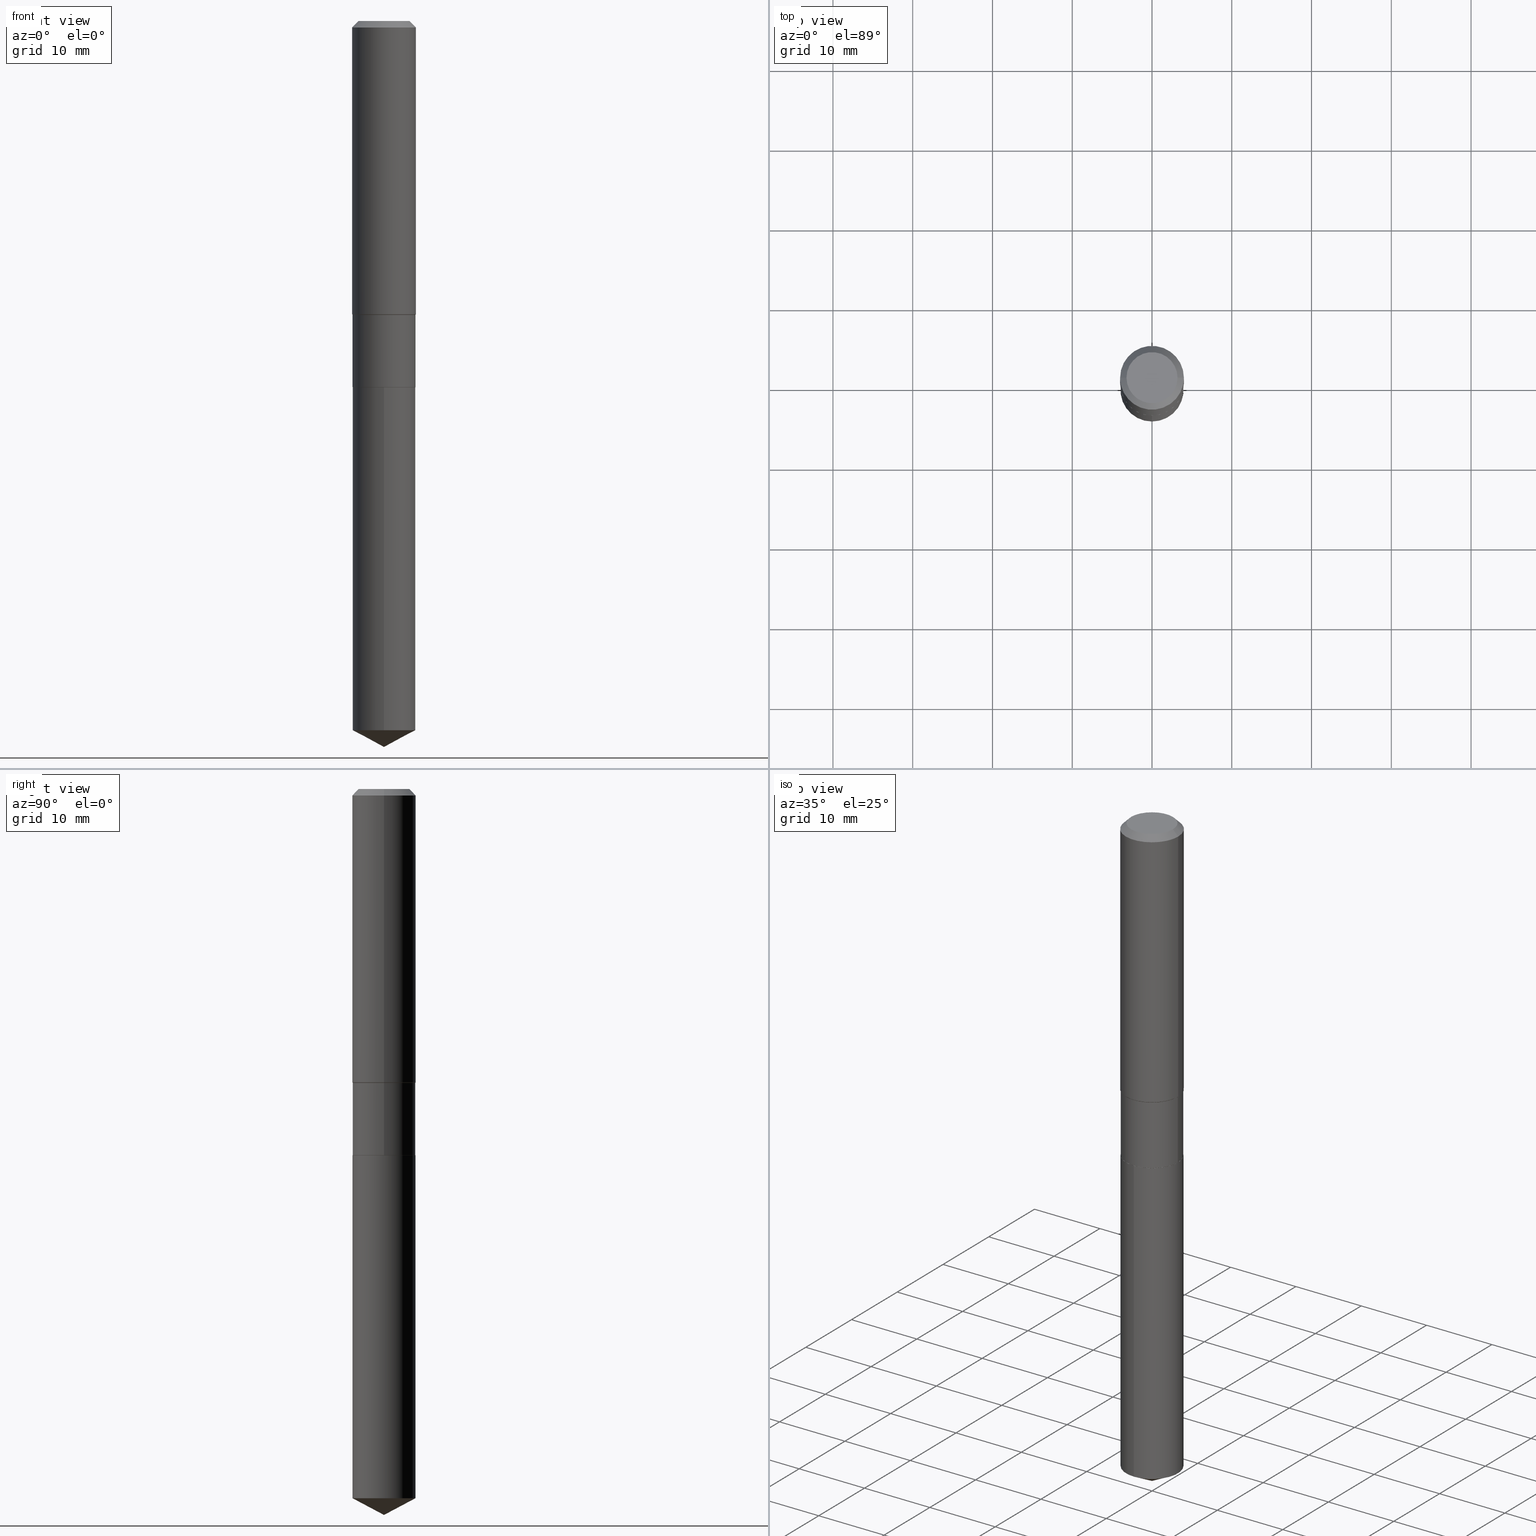
[diagram: canonical four-view strip — front | top / right | iso, engineering-drawing reading convention]
A machine part, canonical four-view strip (front | top / right | iso — engineering-drawing reading convention). The complete STEP part file that produces these views, byte-faithful:
ISO-10303-21;
HEADER;
FILE_DESCRIPTION (( 'STEP AP203' ),
    '1' );
FILE_NAME ('64849.STEP',
    '2024-04-24T19:13:58',
    ( '' ),
    ( '' ),
    'SwSTEP 2.0',
    'SolidWorks 2023',
    '' );
FILE_SCHEMA (( 'CONFIG_CONTROL_DESIGN' ));
ENDSEC;

DATA;
#1 = CARTESIAN_POINT ( 'NONE',  ( -0.1554999999999999438, 1.104893954106955390E-15, -7.648944065346376022E-30 ) ) ;
#2 = DIRECTION ( 'NONE',  ( -2.445468806185136597E-29, 3.491481338843145583E-15, 1.000000000000000000 ) ) ;
#3 = EDGE_CURVE ( 'NONE', #74, #77, #224, .T. ) ;
#4 = DIRECTION ( 'NONE',  ( -2.445468806185136877E-29, 3.491481338843145188E-15, 1.000000000000000000 ) ) ;
#5 = ORIENTED_EDGE ( 'NONE', *, *, #408, .F. ) ;
#6 = CARTESIAN_POINT ( 'NONE',  ( 4.419206679657160853E-29, -6.309455927423449056E-15, -1.807100000000000151 ) ) ;
#7 = ORIENTED_EDGE ( 'NONE', *, *, #162, .F. ) ;
#8 = DIRECTION ( 'NONE',  ( -2.445468806185136597E-29, 3.491481338843145583E-15, 1.000000000000000000 ) ) ;
#9 = ORIENTED_EDGE ( 'NONE', *, *, #357, .F. ) ;
#10 = AXIS2_PLACEMENT_3D ( 'NONE', #111, #368, #332 ) ;
#11 = CIRCLE ( 'NONE', #487, 0.1554999999999999993 ) ;
#12 = AXIS2_PLACEMENT_3D ( 'NONE', #316, #401, #100 ) ;
#13 = DIRECTION ( 'NONE',  ( -2.445468806185136597E-29, 3.491481338843145583E-15, 1.000000000000000000 ) ) ;
#14 = PERSON_AND_ORGANIZATION_ROLE ( 'classification_officer' ) ;
#15 = ORIENTED_EDGE ( 'NONE', *, *, #193, .F. ) ;
#16 = MANIFOLD_SOLID_BREP ( 'Body-Move/Copy2[1]', #434 ) ;
#17 = CARTESIAN_POINT ( 'NONE',  ( -0.1549999999999999989, -5.208114686995293579E-15, -1.807100000000000151 ) ) ;
#18 = DIRECTION ( 'NONE',  ( 1.000000000000000000, -6.982962677686267499E-15, 4.876176775795936353E-29 ) ) ;
#19 = CARTESIAN_POINT ( 'NONE',  ( -8.751634373926464530E-28, 1.249517879329679962E-13, 35.78737874015747877 ) ) ;
#20 = EDGE_CURVE ( 'NONE', #386, #422, #321, .T. ) ;
#21 = AXIS2_PLACEMENT_3D ( 'NONE', #374, #76, #421 ) ;
#22 = VECTOR ( 'NONE', #93, 39.37007874015748143 ) ;
#23 = DIRECTION ( 'NONE',  ( -6.982962677686265133E-15, -1.000000000000000000, 3.513630860018345064E-15 ) ) ;
#24 = DIRECTION ( 'NONE',  ( 1.000000000000000000, -6.982962677686269077E-15, 0.000000000000000000 ) ) ;
#25 = ADVANCED_FACE ( 'NONE', ( #244 ), #361, .F. ) ;
#26 = DATE_TIME_ROLE ( 'creation_date' ) ;
#27 = CARTESIAN_POINT ( 'NONE',  ( 3.544462487684736704E-29, -5.060553052519254127E-15, -1.449399999999999800 ) ) ;
#28 = CIRCLE ( 'NONE', #403, 0.1554999999999999438 ) ;
#29 = PERSON_AND_ORGANIZATION ( #60, #98 ) ;
#30 = CARTESIAN_POINT ( 'NONE',  ( 0.1575000000000000011, -1.190510096822576026E-15, -0.03150000000000019451 ) ) ;
#31 = VECTOR ( 'NONE', #218, 39.37007874015748143 ) ;
#32 = CARTESIAN_POINT ( 'NONE',  ( 4.419206679657160853E-29, -6.309455927423449056E-15, -1.807100000000000151 ) ) ;
#33 = DIRECTION ( 'NONE',  ( 2.445453521362926487E-29, -3.491503227578508075E-15, -1.000000000000000000 ) ) ;
#34 = FACE_OUTER_BOUND ( 'NONE', #89, .T. ) ;
#35 = DIRECTION ( 'NONE',  ( -2.445468806185136597E-29, 3.491481338843145583E-15, 1.000000000000000000 ) ) ;
#36 = LINE ( 'NONE', #41, #39 ) ;
#37 = CC_DESIGN_DATE_AND_TIME_ASSIGNMENT ( #457, #385, ( #160 ) ) ;
#38 = CYLINDRICAL_SURFACE ( 'NONE', #21, 0.1554999999999999993 ) ;
#39 = VECTOR ( 'NONE', #461, 39.37007874015748143 ) ;
#40 = ORIENTED_EDGE ( 'NONE', *, *, #144, .F. ) ;
#41 = CARTESIAN_POINT ( 'NONE',  ( 0.1549999999999999989, -7.391815142464819923E-15, -1.807100000000000151 ) ) ;
#42 = ORIENTED_EDGE ( 'NONE', *, *, #286, .T. ) ;
#43 = EDGE_CURVE ( 'NONE', #463, #55, #369, .T. ) ;
#44 = FACE_OUTER_BOUND ( 'NONE', #415, .T. ) ;
#45 = ORIENTED_EDGE ( 'NONE', *, *, #186, .T. ) ;
#46 = DIRECTION ( 'NONE',  ( -2.445468806185136597E-29, 3.491481338843145583E-15, 1.000000000000000000 ) ) ;
#47 = ORIENTED_EDGE ( 'NONE', *, *, #228, .F. ) ;
#48 = CONICAL_SURFACE ( 'NONE', #139, 0.1549999999999999989, 0.7853981633975507526 ) ;
#49 = AXIS2_PLACEMENT_3D ( 'NONE', #269, #235, #382 ) ;
#50 = DIRECTION ( 'NONE',  ( -2.445468806185136597E-29, 3.491481338843145583E-15, 1.000000000000000000 ) ) ;
#51 = ORIENTED_EDGE ( 'NONE', *, *, #118, .F. ) ;
#52 = APPROVAL_ROLE ( '' ) ;
#53 = DIRECTION ( 'NONE',  ( -1.000000000000000000, 6.982962677686265922E-15, -4.876176775795935793E-29 ) ) ;
#54 = PERSON_AND_ORGANIZATION_ROLE ( 'creator' ) ;
#55 = VERTEX_POINT ( 'NONE', #247 ) ;
#56 = CONICAL_SURFACE ( 'NONE', #459, 0.1554999999999999438, 0.7853981633974653764 ) ;
#57 =( LENGTH_UNIT ( ) NAMED_UNIT ( * ) SI_UNIT ( $, .METRE. ) );
#58 = ORIENTED_EDGE ( 'NONE', *, *, #328, .T. ) ;
#59 = EDGE_CURVE ( 'NONE', #133, #376, #242, .T. ) ;
#60 = PERSON ( 'UNSPECIFIED', 'UNSPECIFIED', 'UNSPECIFIED', ('UNSPECIFIED'), ('UNSPECIFIED'), ('UNSPECIFIED') ) ;
#61 = FACE_OUTER_BOUND ( 'NONE', #129, .T. ) ;
#62 = APPROVAL ( #353, 'UNSPECIFIED' ) ;
#63 = COORDINATED_UNIVERSAL_TIME_OFFSET ( 5, 0, .BEHIND. ) ;
#64 = ORIENTED_EDGE ( 'NONE', *, *, #162, .T. ) ;
#65 = VECTOR ( 'NONE', #4, 39.37007874015748143 ) ;
#66 = DIRECTION ( 'NONE',  ( -2.445453521362927048E-29, 3.491503227578508075E-15, 1.000000000000000000 ) ) ;
#67 = CARTESIAN_POINT ( 'NONE',  ( -8.751634373926464530E-28, 1.249517879329679962E-13, 35.78737874015747877 ) ) ;
#68 = DIRECTION ( 'NONE',  ( -2.445468806185136877E-29, 3.491481338843145188E-15, 1.000000000000000000 ) ) ;
#69 = LOCAL_TIME ( 15, 13, 58.00000000000000000, #204 ) ;
#70 = CARTESIAN_POINT ( 'NONE',  ( -0.1260000000000000009, 9.348441284752484904E-16, 3.860086710906114178E-18 ) ) ;
#71 = CONICAL_SURFACE ( 'NONE', #221, 74.04434902938317009, 1.082104136236484493 ) ;
#72 = ADVANCED_FACE ( 'NONE', ( #61 ), #48, .T. ) ;
#73 = DIRECTION ( 'NONE',  ( 6.982962677686265922E-15, 1.000000000000000000, -3.491503227578508075E-15 ) ) ;
#74 = VERTEX_POINT ( 'NONE', #214 ) ;
#75 = APPLICATION_CONTEXT ( 'configuration controlled 3d designs of mechanical parts and assemblies' ) ;
#76 = DIRECTION ( 'NONE',  ( -2.445453521362927048E-29, 3.491503227578508075E-15, 1.000000000000000000 ) ) ;
#77 = VERTEX_POINT ( 'NONE', #216 ) ;
#78 = ADVANCED_FACE ( 'NONE', ( #323 ), #312, .T. ) ;
#79 = DIRECTION ( 'NONE',  ( 2.445468806185136597E-29, -3.491481338843145583E-15, -1.000000000000000000 ) ) ;
#80 = AXIS2_PLACEMENT_3D ( 'NONE', #153, #300, #450 ) ;
#81 = ORIENTED_EDGE ( 'NONE', *, *, #20, .F. ) ;
#82 = CARTESIAN_POINT ( 'NONE',  ( 4.419206679657160853E-29, -6.309455927423449056E-15, -1.807100000000000151 ) ) ;
#83 = CC_DESIGN_PERSON_AND_ORGANIZATION_ASSIGNMENT ( #181, #101, ( #267 ) ) ;
#84 = SHAPE_DEFINITION_REPRESENTATION ( #306, #258 ) ;
#85 = ORIENTED_EDGE ( 'NONE', *, *, #350, .F. ) ;
#86 = LINE ( 'NONE', #338, #277 ) ;
#87 = ORIENTED_EDGE ( 'NONE', *, *, #480, .T. ) ;
#88 = FACE_OUTER_BOUND ( 'NONE', #175, .T. ) ;
#89 = EDGE_LOOP ( 'NONE', ( #397, #399, #425, #115 ) ) ;
#90 = AXIS2_PLACEMENT_3D ( 'NONE', #454, #79, #195 ) ;
#91 = EDGE_CURVE ( 'NONE', #376, #285, #102, .T. ) ;
#92 = MECHANICAL_CONTEXT ( 'NONE', #468, 'mechanical' ) ;
#93 = DIRECTION ( 'NONE',  ( -0.7071067811866199593, 7.493145998870616062E-15, 0.7071067811864750752 ) ) ;
#94 = PERSON_AND_ORGANIZATION_ROLE ( 'design_owner' ) ;
#95 = CARTESIAN_POINT ( 'NONE',  ( 4.419206679657160853E-29, -6.309455927423449056E-15, -1.807100000000000151 ) ) ;
#96 = LINE ( 'NONE', #249, #299 ) ;
#97 = ORIENTED_EDGE ( 'NONE', *, *, #149, .F. ) ;
#98 = ORGANIZATION ( 'UNSPECIFIED', 'UNSPECIFIED', '' ) ;
#99 = APPROVAL_DATE_TIME ( #432, #62 ) ;
#100 = DIRECTION ( 'NONE',  ( 1.000000000000000000, -6.982962677686265922E-15, 0.000000000000000000 ) ) ;
#101 = PERSON_AND_ORGANIZATION_ROLE ( 'design_supplier' ) ;
#102 = LINE ( 'NONE', #253, #489 ) ;
#103 = FACE_OUTER_BOUND ( 'NONE', #124, .T. ) ;
#104 = AXIS2_PLACEMENT_3D ( 'NONE', #185, #440, #329 ) ;
#105 = DIRECTION ( 'NONE',  ( -2.445468806185136597E-29, 3.491481338843145583E-15, 1.000000000000000000 ) ) ;
#106 = CARTESIAN_POINT ( 'NONE',  ( 8.761326330986958013E-29, -1.250900861344551918E-14, -3.582699999999999996 ) ) ;
#107 = CARTESIAN_POINT ( 'NONE',  ( 0.1549999999999999989, -7.391815142464819923E-15, -1.807100000000000151 ) ) ;
#108 = ADVANCED_FACE ( 'NONE', ( #427 ), #71, .T. ) ;
#109 = AXIS2_PLACEMENT_3D ( 'NONE', #257, #105, #152 ) ;
#110 = VECTOR ( 'NONE', #388, 39.37007874015748143 ) ;
#111 = CARTESIAN_POINT ( 'NONE',  ( 7.703226739483226971E-31, -1.099816621735597538E-16, -0.03150000000000019451 ) ) ;
#112 = VECTOR ( 'NONE', #261, 39.37007874015748143 ) ;
#113 = FACE_OUTER_BOUND ( 'NONE', #238, .T. ) ;
#114 = COORDINATED_UNIVERSAL_TIME_OFFSET ( 5, 0, .BEHIND. ) ;
#115 = ORIENTED_EDGE ( 'NONE', *, *, #371, .F. ) ;
#116 = DIRECTION ( 'NONE',  ( 1.000000000000000000, -6.982962677686265922E-15, 4.876281427513067258E-29 ) ) ;
#117 = ORIENTED_EDGE ( 'NONE', *, *, #43, .T. ) ;
#118 = EDGE_CURVE ( 'NONE', #383, #433, #378, .T. ) ;
#119 = CARTESIAN_POINT ( 'NONE',  ( 4.417983945254068051E-29, -6.307710186754027552E-15, -1.806600000000000428 ) ) ;
#120 = APPROVAL_STATUS ( 'not_yet_approved' ) ;
#121 = ORIENTED_EDGE ( 'NONE', *, *, #251, .F. ) ;
#122 = AXIS2_PLACEMENT_3D ( 'NONE', #283, #356, #53 ) ;
#123 = DIRECTION ( 'NONE',  ( -6.982962677686265133E-15, -1.000000000000000000, 3.513630860018345064E-15 ) ) ;
#124 = EDGE_LOOP ( 'NONE', ( #420, #381, #394, #64 ) ) ;
#125 = DIRECTION ( 'NONE',  ( -2.445468806185136597E-29, 3.491481338843145583E-15, 1.000000000000000000 ) ) ;
#126 = ORIENTED_EDGE ( 'NONE', *, *, #402, .T. ) ;
#127 = EDGE_CURVE ( 'NONE', #276, #386, #460, .T. ) ;
#128 = PERSON_AND_ORGANIZATION ( #60, #98 ) ;
#129 = EDGE_LOOP ( 'NONE', ( #197, #234, #121, #393 ) ) ;
#130 = DIRECTION ( 'NONE',  ( -6.165590087286827352E-15, -0.8829475928589254341, 0.4694715627858938034 ) ) ;
#131 = DIRECTION ( 'NONE',  ( -2.445453521362927048E-29, 3.491503227578508075E-15, 1.000000000000000000 ) ) ;
#132 = CYLINDRICAL_SURFACE ( 'NONE', #355, 0.1575000000000000844 ) ;
#133 = VERTEX_POINT ( 'NONE', #327 ) ;
#134 = PRODUCT_DEFINITION ( 'UNKNOWN', '', #267, #446 ) ;
#135 = LINE ( 'NONE', #396, #370 ) ;
#136 = DIRECTION ( 'NONE',  ( -2.445468806185136597E-29, 3.491481338843145583E-15, 1.000000000000000000 ) ) ;
#137 = AXIS2_PLACEMENT_3D ( 'NONE', #476, #209, #23 ) ;
#138 = LOCAL_TIME ( 15, 13, 58.00000000000000000, #315 ) ;
#139 = AXIS2_PLACEMENT_3D ( 'NONE', #95, #136, #474 ) ;
#140 = DIRECTION ( 'NONE',  ( -2.445468806185136597E-29, 3.491481338843145583E-15, 1.000000000000000000 ) ) ;
#141 = ORIENTED_EDGE ( 'NONE', *, *, #408, .T. ) ;
#142 = PERSON_AND_ORGANIZATION ( #60, #98 ) ;
#143 = DIRECTION ( 'NONE',  ( 1.000000000000000000, -6.982962677686266711E-15, 0.000000000000000000 ) ) ;
#144 = EDGE_CURVE ( 'NONE', #433, #383, #206, .T. ) ;
#145 = DIRECTION ( 'NONE',  ( -6.982962677686267499E-15, -1.000000000000000000, 3.541896320645578618E-15 ) ) ;
#146 = CONICAL_SURFACE ( 'NONE', #49, 0.1549999999999999989, 0.7853981633975507526 ) ;
#147 = AXIS2_PLACEMENT_3D ( 'NONE', #443, #447, #364 ) ;
#148 = CARTESIAN_POINT ( 'NONE',  ( -9.439721640706201686E-47, 1.347742071746726764E-32, 3.860086710912459732E-18 ) ) ;
#149 = EDGE_CURVE ( 'NONE', #481, #161, #482, .T. ) ;
#150 = PLANE ( 'NONE',  #147 ) ;
#151 = CC_DESIGN_PERSON_AND_ORGANIZATION_ASSIGNMENT ( #176, #54, ( #134 ) ) ;
#152 = DIRECTION ( 'NONE',  ( 1.000000000000000000, -6.982962677686267499E-15, 0.000000000000000000 ) ) ;
#153 = CARTESIAN_POINT ( 'NONE',  ( 4.419206679657160853E-29, -6.309455927423449056E-15, -1.807100000000000151 ) ) ;
#154 = ORIENTED_EDGE ( 'NONE', *, *, #149, .T. ) ;
#155 = CARTESIAN_POINT ( 'NONE',  ( -0.1575000000000000844, 1.119104808822158392E-15, -7.747322767151481189E-30 ) ) ;
#156 = ORIENTED_EDGE ( 'NONE', *, *, #423, .F. ) ;
#157 = DIRECTION ( 'NONE',  ( 1.000000000000000000, -6.982962677686266711E-15, 0.000000000000000000 ) ) ;
#158 = ORIENTED_EDGE ( 'NONE', *, *, #127, .F. ) ;
#159 = CYLINDRICAL_SURFACE ( 'NONE', #307, 0.1554999999999999438 ) ;
#160 = SECURITY_CLASSIFICATION ( '', '', #325 ) ;
#161 = VERTEX_POINT ( 'NONE', #70 ) ;
#162 = EDGE_CURVE ( 'NONE', #55, #463, #201, .T. ) ;
#163 = CARTESIAN_POINT ( 'NONE',  ( 0.1554999999999999993, -7.393560883134242215E-15, -1.806600000000000428 ) ) ;
#164 = ORIENTED_EDGE ( 'NONE', *, *, #3, .T. ) ;
#165 = DIRECTION ( 'NONE',  ( 0.000000000000000000, 0.000000000000000000, 1.000000000000000000 ) ) ;
#166 = DIRECTION ( 'NONE',  ( -2.445453521362927048E-29, 3.491503227578508075E-15, 1.000000000000000000 ) ) ;
#167 = APPLICATION_PROTOCOL_DEFINITION ( 'international standard', 'config_control_design', 1994, #468 ) ;
#168 = CARTESIAN_POINT ( 'NONE',  ( 0.000000000000000000, 0.000000000000000000, 0.000000000000000000 ) ) ;
#169 = AXIS2_PLACEMENT_3D ( 'NONE', #464, #13, #116 ) ;
#170 = EDGE_CURVE ( 'NONE', #133, #309, #296, .T. ) ;
#171 = AXIS2_PLACEMENT_3D ( 'NONE', #406, #485, #220 ) ;
#172 = DATE_AND_TIME ( #210, #232 ) ;
#173 = ORIENTED_EDGE ( 'NONE', *, *, #313, .T. ) ;
#174 = APPLICATION_PROTOCOL_DEFINITION ( 'international standard', 'config_control_design', 1994, #75 ) ;
#175 = EDGE_LOOP ( 'NONE', ( #156, #343, #141, #7 ) ) ;
#176 = PERSON_AND_ORGANIZATION ( #60, #98 ) ;
#177 = DIRECTION ( 'NONE',  ( -2.445468806185136597E-29, 3.491481338843145583E-15, 1.000000000000000000 ) ) ;
#178 = CC_DESIGN_SECURITY_CLASSIFICATION ( #160, ( #267 ) ) ;
#179 = AXIS2_PLACEMENT_3D ( 'NONE', #404, #66, #123 ) ;
#180 = AXIS2_PLACEMENT_3D ( 'NONE', #67, #445, #145 ) ;
#181 = PERSON_AND_ORGANIZATION ( #60, #98 ) ;
#182 = ADVANCED_FACE ( 'NONE', ( #326 ), #389, .T. ) ;
#183 = DIRECTION ( 'NONE',  ( -2.445453521362927048E-29, 3.491503227578508075E-15, 1.000000000000000000 ) ) ;
#184 = DIRECTION ( 'NONE',  ( 1.000000000000000000, -6.982962677686265922E-15, 4.876281427513067258E-29 ) ) ;
#185 = CARTESIAN_POINT ( 'NONE',  ( 3.539571550072366058E-29, -5.053570089841568113E-15, -1.447399999999999798 ) ) ;
#186 = EDGE_CURVE ( 'NONE', #481, #463, #219, .T. ) ;
#187 = CIRCLE ( 'NONE', #377, 0.1554999999999999993 ) ;
#188 = DIRECTION ( 'NONE',  ( -6.982962677686265133E-15, -1.000000000000000000, 3.513630860018345064E-15 ) ) ;
#189 = CARTESIAN_POINT ( 'NONE',  ( 4.417983945254068051E-29, -6.307710186754027552E-15, -1.806600000000000428 ) ) ;
#190 = CARTESIAN_POINT ( 'NONE',  ( 1.104893954107041376E-15, 0.1554999999999936711, -1.807100000000000817 ) ) ;
#191 = PERSON_AND_ORGANIZATION ( #60, #98 ) ;
#192 = FACE_OUTER_BOUND ( 'NONE', #469, .T. ) ;
#193 = EDGE_CURVE ( 'NONE', #74, #433, #367, .T. ) ;
#194 = ORIENTED_EDGE ( 'NONE', *, *, #59, .F. ) ;
#195 = DIRECTION ( 'NONE',  ( -1.000000000000000000, 6.982962677686265922E-15, 0.000000000000000000 ) ) ;
#196 = APPROVAL ( #362, 'UNSPECIFIED' ) ;
#197 = ORIENTED_EDGE ( 'NONE', *, *, #127, .T. ) ;
#198 = DIRECTION ( 'NONE',  ( -2.445453521362927048E-29, 3.491503227578508075E-15, 1.000000000000000000 ) ) ;
#199 = ORIENTED_EDGE ( 'NONE', *, *, #91, .F. ) ;
#200 = ADVANCED_FACE ( 'NONE', ( #103 ), #449, .T. ) ;
#201 = CIRCLE ( 'NONE', #171, 0.1575000000000000011 ) ;
#202 = CARTESIAN_POINT ( 'NONE',  ( 3.544462487684736704E-29, -5.060553052519254127E-15, -1.449399999999999800 ) ) ;
#203 = VECTOR ( 'NONE', #379, 39.37007874015748143 ) ;
#204 = COORDINATED_UNIVERSAL_TIME_OFFSET ( 5, 0, .BEHIND. ) ;
#205 = ORIENTED_EDGE ( 'NONE', *, *, #118, .T. ) ;
#206 = CIRCLE ( 'NONE', #104, 0.1575000000000001676 ) ;
#207 = LINE ( 'NONE', #284, #110 ) ;
#208 = EDGE_LOOP ( 'NONE', ( #236, #305, #51, #455 ) ) ;
#209 = DIRECTION ( 'NONE',  ( -2.445453521362927048E-29, 3.491503227578508075E-15, 1.000000000000000000 ) ) ;
#210 = CALENDAR_DATE ( 2024, 24, 4 ) ;
#211 = EDGE_LOOP ( 'NONE', ( #173, #458 ) ) ;
#212 = CONICAL_SURFACE ( 'NONE', #314, 0.1554999999999999438, 0.7853981633974653764 ) ;
#213 = ORIENTED_EDGE ( 'NONE', *, *, #43, .F. ) ;
#214 = CARTESIAN_POINT ( 'NONE',  ( -0.1554999999999999438, -4.579237665529685647E-15, -1.449399999999999800 ) ) ;
#215 = APPROVAL_ROLE ( '' ) ;
#216 = CARTESIAN_POINT ( 'NONE',  ( 0.1554999999999999438, -6.146403748899468790E-15, -1.449399999999999800 ) ) ;
#217 = LOCAL_TIME ( 15, 13, 58.00000000000000000, #63 ) ;
#218 = DIRECTION ( 'NONE',  ( -0.7071067811865595631, 7.493145998870398336E-15, 0.7071067811865354713 ) ) ;
#219 = LINE ( 'NONE', #30, #112 ) ;
#220 = DIRECTION ( 'NONE',  ( 1.000000000000000000, -6.982962677686265922E-15, 0.000000000000000000 ) ) ;
#221 = AXIS2_PLACEMENT_3D ( 'NONE', #19, #131, #246 ) ;
#222 = AXIS2_PLACEMENT_3D ( 'NONE', #392, #165, #278 ) ;
#223 = DIMENSIONAL_EXPONENTS ( 1.000000000000000000, 0.000000000000000000, 0.000000000000000000, 0.000000000000000000, 0.000000000000000000, 0.000000000000000000, 0.000000000000000000 ) ;
#224 = CIRCLE ( 'NONE', #331, 0.1554999999999999438 ) ;
#225 = FACE_OUTER_BOUND ( 'NONE', #211, .T. ) ;
#226 = CARTESIAN_POINT ( 'NONE',  ( -0.1549999999999999989, -5.205465459821182378E-15, -1.807100000000000151 ) ) ;
#227 = ORIENTED_EDGE ( 'NONE', *, *, #320, .F. ) ;
#228 = EDGE_CURVE ( 'NONE', #422, #74, #366, .T. ) ;
#229 = LINE ( 'NONE', #155, #255 ) ;
#230 = APPROVAL_ROLE ( '' ) ;
#231 = EDGE_LOOP ( 'NONE', ( #47, #266, #290, #390 ) ) ;
#232 = LOCAL_TIME ( 15, 13, 58.00000000000000000, #398 ) ;
#233 = LINE ( 'NONE', #263, #65 ) ;
#234 = ORIENTED_EDGE ( 'NONE', *, *, #20, .T. ) ;
#235 = DIRECTION ( 'NONE',  ( -2.445468806185136597E-29, 3.491481338843145583E-15, 1.000000000000000000 ) ) ;
#236 = ORIENTED_EDGE ( 'NONE', *, *, #320, .T. ) ;
#237 = CARTESIAN_POINT ( 'NONE',  ( -0.1554999999999999993, -4.579237665529685647E-15, -1.806600000000000428 ) ) ;
#238 = EDGE_LOOP ( 'NONE', ( #274, #319, #227, #85 ) ) ;
#239 = CONICAL_SURFACE ( 'NONE', #90, 0.1575000000000000011, 0.7853981633974450594 ) ;
#240 = CARTESIAN_POINT ( 'NONE',  ( 0.000000000000000000, 0.000000000000000000, 0.000000000000000000 ) ) ;
#241 = EDGE_LOOP ( 'NONE', ( #58, #154 ) ) ;
#242 = CIRCLE ( 'NONE', #137, 0.1554999999999999993 ) ;
#243 =( NAMED_UNIT ( * ) SI_UNIT ( $, .STERADIAN. ) SOLID_ANGLE_UNIT ( ) );
#244 = FACE_OUTER_BOUND ( 'NONE', #241, .T. ) ;
#245 = ADVANCED_FACE ( 'NONE', ( #34 ), #484, .T. ) ;
#246 = DIRECTION ( 'NONE',  ( -6.982962677686267499E-15, -1.000000000000000000, 3.541896320645578618E-15 ) ) ;
#247 = CARTESIAN_POINT ( 'NONE',  ( -0.1575000000000000011, -1.462671067185405196E-15, -0.03150000000000019451 ) ) ;
#248 = CIRCLE ( 'NONE', #80, 0.1549999999999999989 ) ;
#249 = CARTESIAN_POINT ( 'NONE',  ( 8.761326330986956891E-29, -1.250900861344551918E-14, -3.582699999999999996 ) ) ;
#250 = ORIENTED_EDGE ( 'NONE', *, *, #313, .F. ) ;
#251 = EDGE_CURVE ( 'NONE', #341, #422, #410, .T. ) ;
#252 = DATE_AND_TIME ( #435, #217 ) ;
#253 = CARTESIAN_POINT ( 'NONE',  ( -1.085850696380170092E-15, -0.1555000000000062998, -1.807099999999999707 ) ) ;
#254 = CARTESIAN_POINT ( 'NONE',  ( -1.085850696380170092E-15, -0.1555000000000062998, -1.807099999999999707 ) ) ;
#255 = VECTOR ( 'NONE', #265, 39.37007874015748143 ) ;
#256 = DIRECTION ( 'NONE',  ( -2.445468806185136597E-29, 3.491481338843145583E-15, 1.000000000000000000 ) ) ;
#257 = CARTESIAN_POINT ( 'NONE',  ( 3.539571550072366058E-29, -5.053570089841568113E-15, -1.447399999999999798 ) ) ;
#258 = ADVANCED_BREP_SHAPE_REPRESENTATION ( '64849', ( #16, #336, #222 ), #431 ) ;
#259 = FACE_OUTER_BOUND ( 'NONE', #208, .T. ) ;
#260 = APPROVAL_PERSON_ORGANIZATION ( #318, #196, #215 ) ;
#261 = DIRECTION ( 'NONE',  ( 0.7071067811865452413, -7.319954787623248157E-15, -0.7071067811865497932 ) ) ;
#262 = ADVANCED_FACE ( 'NONE', ( #225 ), #488, .F. ) ;
#263 = CARTESIAN_POINT ( 'NONE',  ( 0.1575000000000000844, -1.099816621735587677E-15, 7.679978421878603638E-30 ) ) ;
#264 = ORIENTED_EDGE ( 'NONE', *, *, #480, .F. ) ;
#265 = DIRECTION ( 'NONE',  ( -2.445468806185136877E-29, 3.491481338843145188E-15, 1.000000000000000000 ) ) ;
#266 = ORIENTED_EDGE ( 'NONE', *, *, #357, .T. ) ;
#267 = PRODUCT_DEFINITION_FORMATION_WITH_SPECIFIED_SOURCE ( 'ANY', '', #279, .NOT_KNOWN. ) ;
#268 = ADVANCED_FACE ( 'NONE', ( #295 ), #150, .F. ) ;
#269 = CARTESIAN_POINT ( 'NONE',  ( 4.419206679657160853E-29, -6.309455927423449056E-15, -1.807100000000000151 ) ) ;
#270 = VECTOR ( 'NONE', #183, 39.37007874015748143 ) ;
#271 = VERTEX_POINT ( 'NONE', #106 ) ;
#272 = DIRECTION ( 'NONE',  ( -6.982962677686265133E-15, -1.000000000000000000, 3.513630860018345064E-15 ) ) ;
#273 = CC_DESIGN_PERSON_AND_ORGANIZATION_ASSIGNMENT ( #29, #483, ( #267 ) ) ;
#274 = ORIENTED_EDGE ( 'NONE', *, *, #251, .T. ) ;
#275 = LINE ( 'NONE', #335, #203 ) ;
#276 = VERTEX_POINT ( 'NONE', #107 ) ;
#277 = VECTOR ( 'NONE', #413, 39.37007874015748143 ) ;
#278 = DIRECTION ( 'NONE',  ( 1.000000000000000000, 0.000000000000000000, 0.000000000000000000 ) ) ;
#279 = PRODUCT ( '64849', '64849', '', ( #92 ) ) ;
#280 = ORIENTED_EDGE ( 'NONE', *, *, #402, .F. ) ;
#281 = ADVANCED_FACE ( 'NONE', ( #259 ), #56, .T. ) ;
#282 =( CONVERSION_BASED_UNIT ( 'INCH', #470 ) LENGTH_UNIT ( ) NAMED_UNIT ( #223 ) );
#283 = CARTESIAN_POINT ( 'NONE',  ( -4.719860820353100843E-47, 6.738710358733633822E-33, 1.930043355456229866E-18 ) ) ;
#284 = CARTESIAN_POINT ( 'NONE',  ( 0.1554999999999999438, -6.146403748899468790E-15, -1.449399999999999800 ) ) ;
#285 = VERTEX_POINT ( 'NONE', #254 ) ;
#286 = EDGE_CURVE ( 'NONE', #376, #133, #293, .T. ) ;
#287 = ORIENTED_EDGE ( 'NONE', *, *, #286, .F. ) ;
#288 = CC_DESIGN_APPROVAL ( #196, ( #267 ) ) ;
#289 = CARTESIAN_POINT ( 'NONE',  ( 0.1260000000000000009, -1.027466422270894443E-15, 3.860086710919128072E-18 ) ) ;
#290 = ORIENTED_EDGE ( 'NONE', *, *, #350, .T. ) ;
#291 = CARTESIAN_POINT ( 'NONE',  ( 4.419206679657160853E-29, -6.309455927423449056E-15, -1.807100000000000151 ) ) ;
#292 = DIRECTION ( 'NONE',  ( 1.000000000000000000, -6.982962677686263555E-15, 0.000000000000000000 ) ) ;
#293 = CIRCLE ( 'NONE', #179, 0.1554999999999999993 ) ;
#294 = AXIS2_PLACEMENT_3D ( 'NONE', #168, #354, #471 ) ;
#295 = FACE_OUTER_BOUND ( 'NONE', #359, .T. ) ;
#296 = LINE ( 'NONE', #407, #270 ) ;
#297 = DIRECTION ( 'NONE',  ( -2.445468806185136597E-29, 3.491481338843145583E-15, 1.000000000000000000 ) ) ;
#298 = ADVANCED_FACE ( 'NONE', ( #375 ), #146, .T. ) ;
#299 = VECTOR ( 'NONE', #130, 39.37007874015748854 ) ;
#300 = DIRECTION ( 'NONE',  ( -2.445468806185136597E-29, 3.491481338843145583E-15, 1.000000000000000000 ) ) ;
#301 = ORIENTED_EDGE ( 'NONE', *, *, #452, .T. ) ;
#302 = CARTESIAN_POINT ( 'NONE',  ( -0.1575000000000001676, -3.934465281019408143E-15, -1.447399999999999798 ) ) ;
#303 = EDGE_LOOP ( 'NONE', ( #205, #451, #213, #5 ) ) ;
#304 = FACE_OUTER_BOUND ( 'NONE', #418, .T. ) ;
#305 = ORIENTED_EDGE ( 'NONE', *, *, #193, .T. ) ;
#306 = PRODUCT_DEFINITION_SHAPE ( 'NONE', 'NONE',  #134 ) ;
#307 = AXIS2_PLACEMENT_3D ( 'NONE', #308, #125, #384 ) ;
#308 = CARTESIAN_POINT ( 'NONE',  ( 0.000000000000000000, 0.000000000000000000, 0.000000000000000000 ) ) ;
#309 = VERTEX_POINT ( 'NONE', #190 ) ;
#310 = DIRECTION ( 'NONE',  ( 1.000000000000000000, -6.982962677686269077E-15, 0.000000000000000000 ) ) ;
#311 = EDGE_LOOP ( 'NONE', ( #81, #126, #467, #9 ) ) ;
#312 = CYLINDRICAL_SURFACE ( 'NONE', #294, 0.1554999999999999438 ) ;
#313 = EDGE_CURVE ( 'NONE', #285, #309, #187, .T. ) ;
#314 = AXIS2_PLACEMENT_3D ( 'NONE', #419, #46, #310 ) ;
#315 = COORDINATED_UNIVERSAL_TIME_OFFSET ( 5, 0, .BEHIND. ) ;
#316 = CARTESIAN_POINT ( 'NONE',  ( 7.703226739483226971E-31, -1.099816621735597538E-16, -0.03150000000000019451 ) ) ;
#317 = CC_DESIGN_PERSON_AND_ORGANIZATION_ASSIGNMENT ( #360, #94, ( #279 ) ) ;
#318 = PERSON_AND_ORGANIZATION ( #60, #98 ) ;
#319 = ORIENTED_EDGE ( 'NONE', *, *, #228, .T. ) ;
#320 = EDGE_CURVE ( 'NONE', #77, #74, #28, .T. ) ;
#321 = LINE ( 'NONE', #17, #22 ) ;
#322 = CARTESIAN_POINT ( 'NONE',  ( 0.1575000000000000011, -1.209798283909146741E-15, -0.03150000000000019451 ) ) ;
#323 = FACE_OUTER_BOUND ( 'NONE', #231, .T. ) ;
#324 = CLOSED_SHELL ( 'NONE', ( #72, #437, #442, #281, #380, #78, #365, #472, #200, #25, #268, #298 ) ) ;
#325 = SECURITY_CLASSIFICATION_LEVEL ( 'unclassified' ) ;
#326 = FACE_OUTER_BOUND ( 'NONE', #429, .T. ) ;
#327 = CARTESIAN_POINT ( 'NONE',  ( 1.104893954107041376E-15, 0.1554999999999877869, -3.500019183376640530 ) ) ;
#328 = EDGE_CURVE ( 'NONE', #161, #481, #330, .T. ) ;
#329 = DIRECTION ( 'NONE',  ( 1.000000000000000000, -6.982962677686267499E-15, 0.000000000000000000 ) ) ;
#330 = CIRCLE ( 'NONE', #169, 0.1260000000000000009 ) ;
#331 = AXIS2_PLACEMENT_3D ( 'NONE', #27, #177, #24 ) ;
#332 = DIRECTION ( 'NONE',  ( -1.000000000000000000, 6.982962677686265922E-15, 0.000000000000000000 ) ) ;
#333 = ADVANCED_FACE ( 'NONE', ( #44 ), #38, .T. ) ;
#334 = CARTESIAN_POINT ( 'NONE',  ( -0.1554999999999999438, -3.955659098412298540E-15, -1.449399999999999800 ) ) ;
#335 = CARTESIAN_POINT ( 'NONE',  ( 0.1554999999999999438, -1.085850696380214268E-15, 7.582454886362678420E-30 ) ) ;
#336 = MANIFOLD_SOLID_BREP ( 'Body-Move/Copy2[2]', #324 ) ;
#337 = CC_DESIGN_APPROVAL ( #62, ( #134 ) ) ;
#338 = CARTESIAN_POINT ( 'NONE',  ( -0.1575000000000000011, 9.898349595620272334E-16, -0.03150000000000019451 ) ) ;
#339 = ORIENTED_EDGE ( 'NONE', *, *, #486, .F. ) ;
#340 = FACE_OUTER_BOUND ( 'NONE', #303, .T. ) ;
#341 = VERTEX_POINT ( 'NONE', #163 ) ;
#342 = DIRECTION ( 'NONE',  ( -6.982962677686265133E-15, -1.000000000000000000, 3.513630860018345064E-15 ) ) ;
#343 = ORIENTED_EDGE ( 'NONE', *, *, #144, .T. ) ;
#344 = AXIS2_PLACEMENT_3D ( 'NONE', #32, #412, #188 ) ;
#345 = APPROVAL_PERSON_ORGANIZATION ( #128, #62, #52 ) ;
#346 = DIRECTION ( 'NONE',  ( 1.000000000000000000, -6.982962677686269077E-15, 0.000000000000000000 ) ) ;
#347 = AXIS2_PLACEMENT_3D ( 'NONE', #148, #256, #184 ) ;
#348 = CALENDAR_DATE ( 2024, 24, 4 ) ;
#349 = EDGE_LOOP ( 'NONE', ( #339, #87, #287 ) ) ;
#350 = EDGE_CURVE ( 'NONE', #341, #77, #275, .T. ) ;
#351 = DIRECTION ( 'NONE',  ( 6.273719981627758188E-15, 0.8829475928589286537, 0.4694715627858875306 ) ) ;
#352 = ORIENTED_EDGE ( 'NONE', *, *, #170, .T. ) ;
#353 = APPROVAL_STATUS ( 'not_yet_approved' ) ;
#354 = DIRECTION ( 'NONE',  ( -2.445468806185136597E-29, 3.491481338843145583E-15, 1.000000000000000000 ) ) ;
#355 = AXIS2_PLACEMENT_3D ( 'NONE', #479, #140, #18 ) ;
#356 = DIRECTION ( 'NONE',  ( 2.438088387897960049E-29, -3.491481338843145188E-15, -1.000000000000000000 ) ) ;
#357 = EDGE_CURVE ( 'NONE', #422, #341, #395, .T. ) ;
#358 =( NAMED_UNIT ( * ) PLANE_ANGLE_UNIT ( ) SI_UNIT ( $, .RADIAN. ) );
#359 = EDGE_LOOP ( 'NONE', ( #158, #280 ) ) ;
#360 = PERSON_AND_ORGANIZATION ( #60, #98 ) ;
#361 = PLANE ( 'NONE',  #122 ) ;
#362 = APPROVAL_STATUS ( 'not_yet_approved' ) ;
#363 = AXIS2_PLACEMENT_3D ( 'NONE', #240, #50, #473 ) ;
#364 = DIRECTION ( 'NONE',  ( 1.000000000000000000, -6.982962677686265922E-15, 4.876176775795935793E-29 ) ) ;
#365 = ADVANCED_FACE ( 'NONE', ( #192 ), #212, .T. ) ;
#366 = LINE ( 'NONE', #1, #430 ) ;
#367 = LINE ( 'NONE', #334, #31 ) ;
#368 = DIRECTION ( 'NONE',  ( 2.445468806185136597E-29, -3.491481338843145583E-15, -1.000000000000000000 ) ) ;
#369 = CIRCLE ( 'NONE', #12, 0.1575000000000000011 ) ;
#370 = VECTOR ( 'NONE', #351, 39.37007874015748143 ) ;
#371 = EDGE_CURVE ( 'NONE', #309, #285, #11, .T. ) ;
#372 = AXIS2_PLACEMENT_3D ( 'NONE', #490, #409, #292 ) ;
#373 = CARTESIAN_POINT ( 'NONE',  ( 3.544462487684736704E-29, -5.060553052519254127E-15, -1.449399999999999800 ) ) ;
#374 = CARTESIAN_POINT ( 'NONE',  ( 4.419206679657160853E-29, -6.309455927423449056E-15, -1.807100000000000151 ) ) ;
#375 = FACE_OUTER_BOUND ( 'NONE', #311, .T. ) ;
#376 = VERTEX_POINT ( 'NONE', #417 ) ;
#377 = AXIS2_PLACEMENT_3D ( 'NONE', #6, #456, #272 ) ;
#378 = CIRCLE ( 'NONE', #109, 0.1575000000000001676 ) ;
#379 = DIRECTION ( 'NONE',  ( -2.445468806185136877E-29, 3.491481338843145188E-15, 1.000000000000000000 ) ) ;
#380 = ADVANCED_FACE ( 'NONE', ( #113 ), #159, .T. ) ;
#381 = ORIENTED_EDGE ( 'NONE', *, *, #328, .F. ) ;
#382 = DIRECTION ( 'NONE',  ( 1.000000000000000000, -6.982962677686263555E-15, 0.000000000000000000 ) ) ;
#383 = VERTEX_POINT ( 'NONE', #424 ) ;
#384 = DIRECTION ( 'NONE',  ( 1.000000000000000000, -6.982962677686268288E-15, 4.876176775795936353E-29 ) ) ;
#385 = DATE_TIME_ROLE ( 'classification_date' ) ;
#386 = VERTEX_POINT ( 'NONE', #226 ) ;
#387 = EDGE_CURVE ( 'NONE', #276, #341, #36, .T. ) ;
#388 = DIRECTION ( 'NONE',  ( 0.7071067811865595631, -2.468850131082382884E-15, 0.7071067811865354713 ) ) ;
#389 = CONICAL_SURFACE ( 'NONE', #180, 74.04434902938317009, 1.082104136236484493 ) ;
#390 = ORIENTED_EDGE ( 'NONE', *, *, #3, .F. ) ;
#391 = CC_DESIGN_PERSON_AND_ORGANIZATION_ASSIGNMENT ( #142, #14, ( #160 ) ) ;
#392 = CARTESIAN_POINT ( 'NONE',  ( 0.000000000000000000, 0.000000000000000000, 0.000000000000000000 ) ) ;
#393 = ORIENTED_EDGE ( 'NONE', *, *, #387, .F. ) ;
#394 = ORIENTED_EDGE ( 'NONE', *, *, #416, .T. ) ;
#395 = CIRCLE ( 'NONE', #439, 0.1554999999999999993 ) ;
#396 = CARTESIAN_POINT ( 'NONE',  ( 8.761382057802064930E-29, -1.250892950317817426E-14, -3.582699999999999996 ) ) ;
#397 = ORIENTED_EDGE ( 'NONE', *, *, #170, .F. ) ;
#398 = COORDINATED_UNIVERSAL_TIME_OFFSET ( 5, 0, .BEHIND. ) ;
#399 = ORIENTED_EDGE ( 'NONE', *, *, #59, .T. ) ;
#400 = APPROVAL_DATE_TIME ( #252, #196 ) ;
#401 = DIRECTION ( 'NONE',  ( -2.445468806185136597E-29, 3.491481338843145583E-15, 1.000000000000000000 ) ) ;
#402 = EDGE_CURVE ( 'NONE', #386, #276, #248, .T. ) ;
#403 = AXIS2_PLACEMENT_3D ( 'NONE', #202, #8, #346 ) ;
#404 = CARTESIAN_POINT ( 'NONE',  ( 8.559161858028415094E-29, -1.222028872021255922E-14, -3.500019183376640086 ) ) ;
#405 = APPROVAL ( #120, 'UNSPECIFIED' ) ;
#406 = CARTESIAN_POINT ( 'NONE',  ( 7.703226739483226971E-31, -1.099816621735597538E-16, -0.03150000000000019451 ) ) ;
#407 = CARTESIAN_POINT ( 'NONE',  ( 1.104893954106999566E-15, 0.1554999999999936711, -1.807100000000000817 ) ) ;
#408 = EDGE_CURVE ( 'NONE', #383, #463, #233, .T. ) ;
#409 = DIRECTION ( 'NONE',  ( -2.445468806185136597E-29, 3.491481338843145583E-15, 1.000000000000000000 ) ) ;
#410 = CIRCLE ( 'NONE', #477, 0.1554999999999999993 ) ;
#411 = APPROVAL_PERSON_ORGANIZATION ( #191, #405, #230 ) ;
#412 = DIRECTION ( 'NONE',  ( -2.445453521362927048E-29, 3.491503227578508075E-15, 1.000000000000000000 ) ) ;
#413 = DIRECTION ( 'NONE',  ( -0.7071067811865452413, 2.468850131082233000E-15, -0.7071067811865497932 ) ) ;
#414 = DATE_AND_TIME ( #466, #448 ) ;
#415 = EDGE_LOOP ( 'NONE', ( #42, #352, #250, #199 ) ) ;
#416 = EDGE_CURVE ( 'NONE', #161, #55, #86, .T. ) ;
#417 = CARTESIAN_POINT ( 'NONE',  ( -1.085850696380128874E-15, -0.1555000000000122118, -3.500019183376639642 ) ) ;
#418 = EDGE_LOOP ( 'NONE', ( #97, #45, #117, #426 ) ) ;
#419 = CARTESIAN_POINT ( 'NONE',  ( 3.544462487684736704E-29, -5.060553052519254127E-15, -1.449399999999999800 ) ) ;
#420 = ORIENTED_EDGE ( 'NONE', *, *, #186, .F. ) ;
#421 = DIRECTION ( 'NONE',  ( -6.982962677686265133E-15, -1.000000000000000000, 3.513630860018345064E-15 ) ) ;
#422 = VERTEX_POINT ( 'NONE', #237 ) ;
#423 = EDGE_CURVE ( 'NONE', #433, #55, #229, .T. ) ;
#424 = CARTESIAN_POINT ( 'NONE',  ( 0.1575000000000001676, -6.153386711577156382E-15, -1.447399999999999798 ) ) ;
#425 = ORIENTED_EDGE ( 'NONE', *, *, #91, .T. ) ;
#426 = ORIENTED_EDGE ( 'NONE', *, *, #416, .F. ) ;
#427 = FACE_OUTER_BOUND ( 'NONE', #349, .T. ) ;
#428 = CYLINDRICAL_SURFACE ( 'NONE', #363, 0.1575000000000000844 ) ;
#429 = EDGE_LOOP ( 'NONE', ( #264, #436, #194 ) ) ;
#430 = VECTOR ( 'NONE', #68, 39.37007874015748143 ) ;
#431 =( GEOMETRIC_REPRESENTATION_CONTEXT ( 3 ) GLOBAL_UNCERTAINTY_ASSIGNED_CONTEXT ( ( #453 ) ) GLOBAL_UNIT_ASSIGNED_CONTEXT ( ( #282, #358, #243 ) ) REPRESENTATION_CONTEXT ( 'NONE', 'WORKASPACE' ) );
#432 = DATE_AND_TIME ( #475, #138 ) ;
#433 = VERTEX_POINT ( 'NONE', #302 ) ;
#434 = CLOSED_SHELL ( 'NONE', ( #333, #108, #182, #245, #262 ) ) ;
#435 = CALENDAR_DATE ( 2024, 24, 4 ) ;
#436 = ORIENTED_EDGE ( 'NONE', *, *, #486, .T. ) ;
#437 = ADVANCED_FACE ( 'NONE', ( #304 ), #239, .T. ) ;
#438 = DIRECTION ( 'NONE',  ( 1.000000000000000000, -6.982962677686269077E-15, 0.000000000000000000 ) ) ;
#439 = AXIS2_PLACEMENT_3D ( 'NONE', #119, #2, #157 ) ;
#440 = DIRECTION ( 'NONE',  ( -2.445468806185136597E-29, 3.491481338843145583E-15, 1.000000000000000000 ) ) ;
#441 = AXIS2_PLACEMENT_3D ( 'NONE', #291, #33, #73 ) ;
#442 = ADVANCED_FACE ( 'NONE', ( #340 ), #132, .T. ) ;
#443 = CARTESIAN_POINT ( 'NONE',  ( 4.419206679657160853E-29, -6.309455927423449056E-15, -1.807100000000000151 ) ) ;
#444 = CC_DESIGN_DATE_AND_TIME_ASSIGNMENT ( #172, #26, ( #134 ) ) ;
#445 = DIRECTION ( 'NONE',  ( -2.445453521362927048E-29, 3.491503227578508075E-15, 1.000000000000000000 ) ) ;
#446 = DESIGN_CONTEXT ( 'detailed design', #75, 'design' ) ;
#447 = DIRECTION ( 'NONE',  ( -2.438088387897960049E-29, 3.491481338843145188E-15, 1.000000000000000000 ) ) ;
#448 = LOCAL_TIME ( 15, 13, 58.00000000000000000, #114 ) ;
#449 = CONICAL_SURFACE ( 'NONE', #10, 0.1575000000000000011, 0.7853981633974450594 ) ;
#450 = DIRECTION ( 'NONE',  ( 1.000000000000000000, -6.982962677686263555E-15, 0.000000000000000000 ) ) ;
#451 = ORIENTED_EDGE ( 'NONE', *, *, #423, .T. ) ;
#452 = EDGE_CURVE ( 'NONE', #77, #383, #207, .T. ) ;
#453 = UNCERTAINTY_MEASURE_WITH_UNIT (LENGTH_MEASURE( 1.000000000000000082E-05 ), #282, 'distance_accuracy_value', 'NONE');
#454 = CARTESIAN_POINT ( 'NONE',  ( 7.703226739483226971E-31, -1.099816621735597538E-16, -0.03150000000000019451 ) ) ;
#455 = ORIENTED_EDGE ( 'NONE', *, *, #452, .F. ) ;
#456 = DIRECTION ( 'NONE',  ( -2.445453521362927048E-29, 3.491503227578508075E-15, 1.000000000000000000 ) ) ;
#457 = DATE_AND_TIME ( #348, #69 ) ;
#458 = ORIENTED_EDGE ( 'NONE', *, *, #371, .T. ) ;
#459 = AXIS2_PLACEMENT_3D ( 'NONE', #373, #35, #438 ) ;
#460 = CIRCLE ( 'NONE', #372, 0.1549999999999999989 ) ;
#461 = DIRECTION ( 'NONE',  ( 0.7071067811866199593, -2.468850131083015945E-15, 0.7071067811864750752 ) ) ;
#462 = APPROVAL_DATE_TIME ( #414, #405 ) ;
#463 = VERTEX_POINT ( 'NONE', #322 ) ;
#464 = CARTESIAN_POINT ( 'NONE',  ( -9.439721640706201686E-47, 1.347742071746726764E-32, 3.860086710912459732E-18 ) ) ;
#465 = PRODUCT_RELATED_PRODUCT_CATEGORY ( 'detail', '', ( #279 ) ) ;
#466 = CALENDAR_DATE ( 2024, 24, 4 ) ;
#467 = ORIENTED_EDGE ( 'NONE', *, *, #387, .T. ) ;
#468 = APPLICATION_CONTEXT ( 'configuration controlled 3d designs of mechanical parts and assemblies' ) ;
#469 = EDGE_LOOP ( 'NONE', ( #15, #164, #301, #40 ) ) ;
#470 = LENGTH_MEASURE_WITH_UNIT ( LENGTH_MEASURE( 0.02539999999999999897 ), #57 );
#471 = DIRECTION ( 'NONE',  ( 1.000000000000000000, -6.982962677686268288E-15, 4.876176775795936353E-29 ) ) ;
#472 = ADVANCED_FACE ( 'NONE', ( #88 ), #428, .T. ) ;
#473 = DIRECTION ( 'NONE',  ( 1.000000000000000000, -6.982962677686267499E-15, 4.876176775795936353E-29 ) ) ;
#474 = DIRECTION ( 'NONE',  ( 1.000000000000000000, -6.982962677686263555E-15, 0.000000000000000000 ) ) ;
#475 = CALENDAR_DATE ( 2024, 24, 4 ) ;
#476 = CARTESIAN_POINT ( 'NONE',  ( 8.559161858028415094E-29, -1.222028872021255922E-14, -3.500019183376640086 ) ) ;
#477 = AXIS2_PLACEMENT_3D ( 'NONE', #189, #297, #143 ) ;
#478 = CC_DESIGN_APPROVAL ( #405, ( #160 ) ) ;
#479 = CARTESIAN_POINT ( 'NONE',  ( 0.000000000000000000, 0.000000000000000000, 0.000000000000000000 ) ) ;
#480 = EDGE_CURVE ( 'NONE', #271, #133, #135, .T. ) ;
#481 = VERTEX_POINT ( 'NONE', #289 ) ;
#482 = CIRCLE ( 'NONE', #347, 0.1260000000000000009 ) ;
#483 = PERSON_AND_ORGANIZATION_ROLE ( 'creator' ) ;
#484 = CYLINDRICAL_SURFACE ( 'NONE', #344, 0.1554999999999999993 ) ;
#485 = DIRECTION ( 'NONE',  ( -2.445468806185136597E-29, 3.491481338843145583E-15, 1.000000000000000000 ) ) ;
#486 = EDGE_CURVE ( 'NONE', #271, #376, #96, .T. ) ;
#487 = AXIS2_PLACEMENT_3D ( 'NONE', #82, #198, #342 ) ;
#488 = PLANE ( 'NONE',  #441 ) ;
#489 = VECTOR ( 'NONE', #166, 39.37007874015748143 ) ;
#490 = CARTESIAN_POINT ( 'NONE',  ( 4.419206679657160853E-29, -6.309455927423449056E-15, -1.807100000000000151 ) ) ;
ENDSEC;
END-ISO-10303-21;
